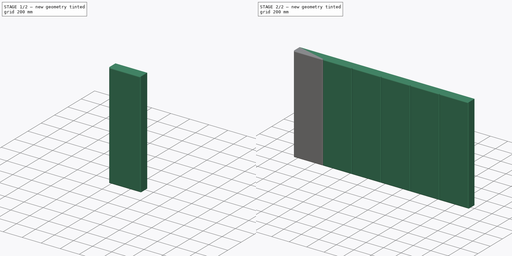
[diagram: build sequence overview — one tinted view per stage of 2, left to right]
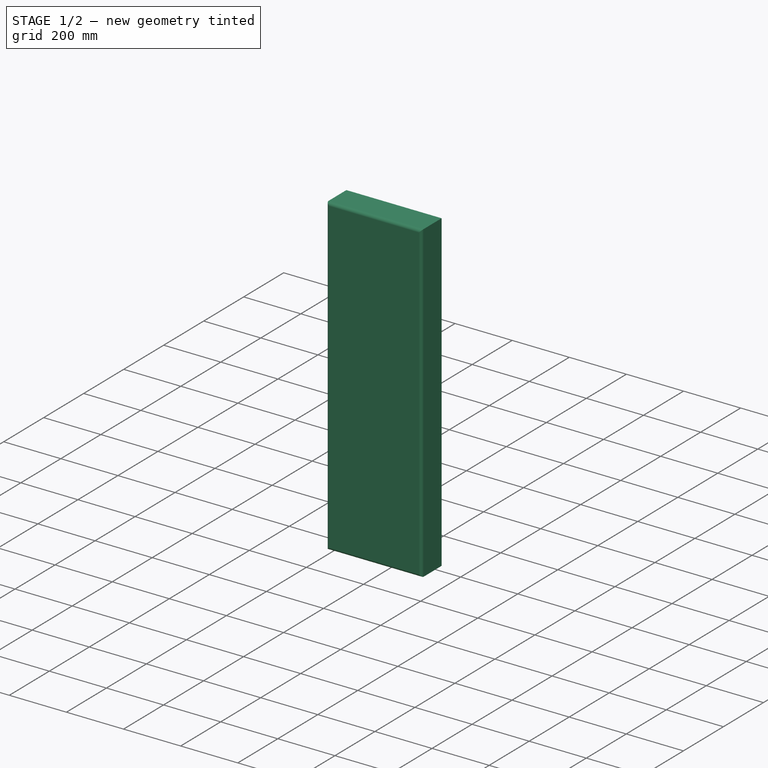
[diagram: stage 1 of 2 — iso view after this stage's code; geometry added in this stage tinted green]
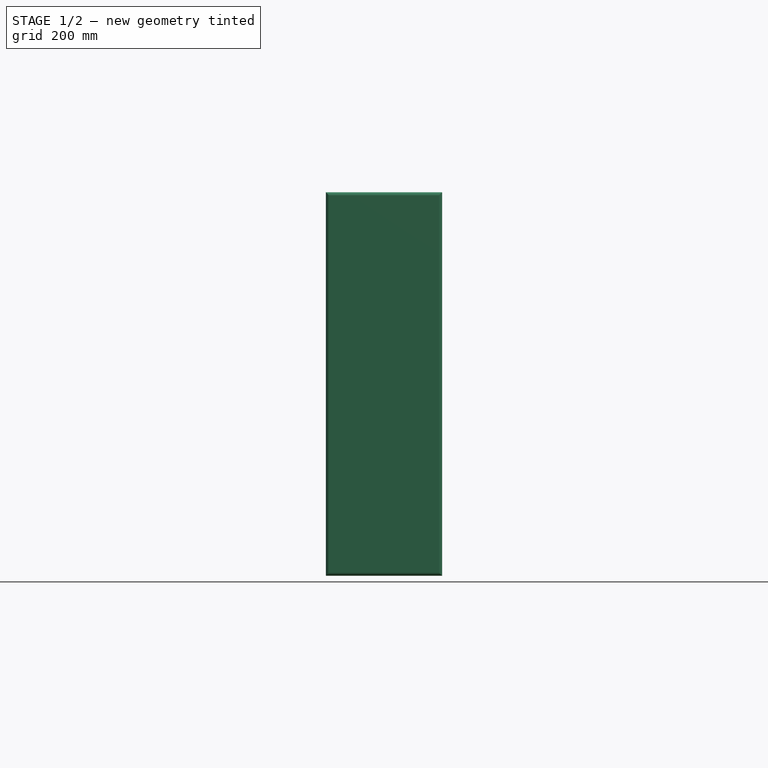
[diagram: stage 1 of 2 — front view after this stage's code; geometry added in this stage tinted green]
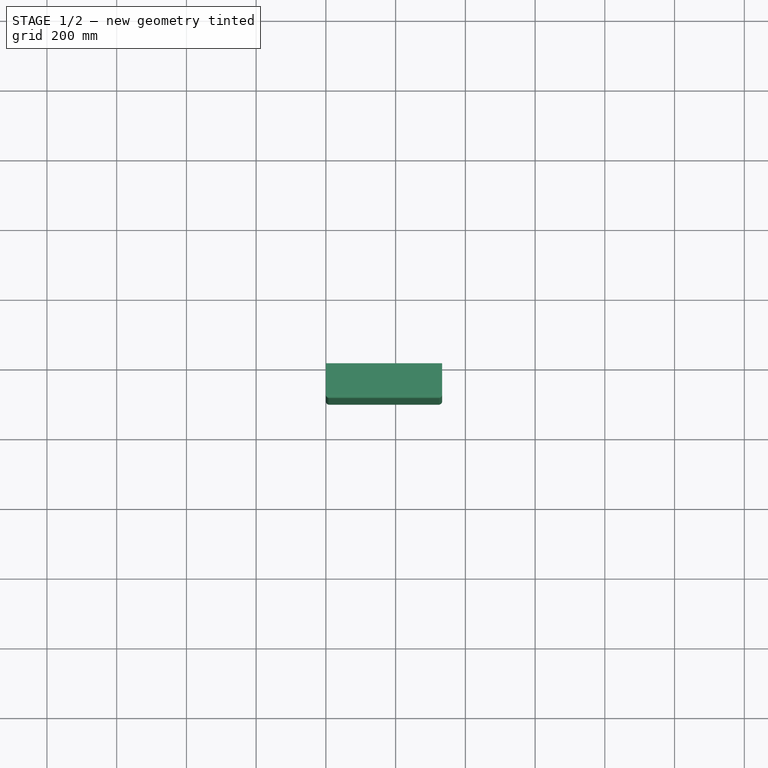
[diagram: stage 1 of 2 — top view after this stage's code; geometry added in this stage tinted green]
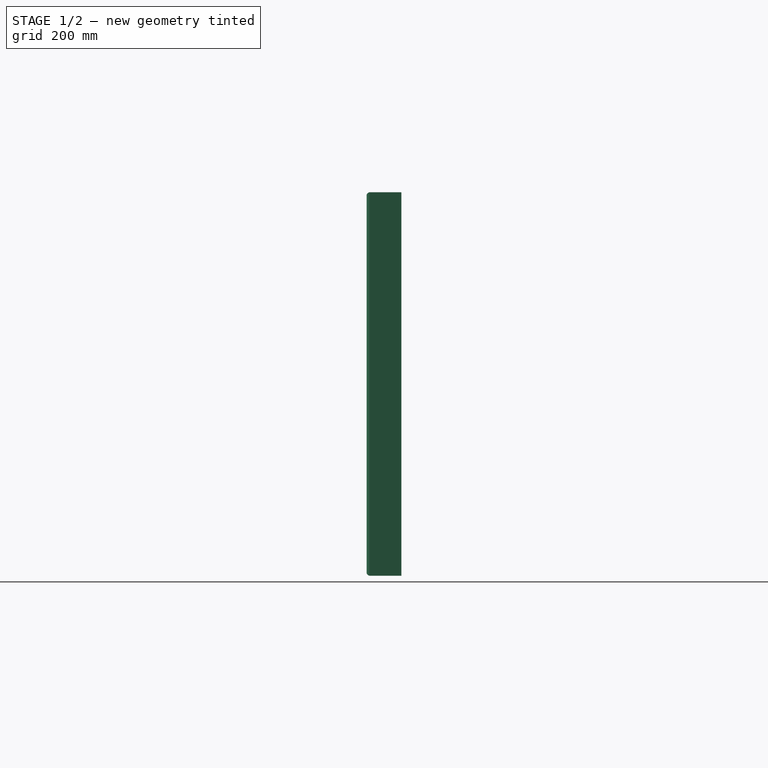
[diagram: stage 1 of 2 — right view after this stage's code; geometry added in this stage tinted green]
FCSTD DOCUMENT  (FreeCAD 0.21R33668 +26 (Git))
Label: Cabeceira
License: All rights reserved
objects: Part::FeaturePython×2, Sketcher::SketchObject×1, Part::Extrusion×1, Part::Fillet×1
note: 5 computed .brp shape members not serialized (recipe doc carries the construction recipe); baked Part::Feature solids carry a one-line shape summary decoded from their .brp

FEATURE [Sketcher::SketchObject] Sketch
  FullyConstrained = true
  Placement = pos=(0,0,0) rot=(1,0,0;1.5708rad)
  expr: Constraints[10] = <<Propriedades cabeceira>>.Altura
  expr: Constraints[9] = <<Propriedades cabeceira>>.Comprimento / <<Propriedades cabeceira>>.NumModulos
  sketch-geometry (4):
    g0: LineSegment StartX=0 StartY=0 StartZ=0 EndX=333.333 EndY=0 EndZ=0
    g1: LineSegment StartX=333.333 StartY=0 StartZ=0 EndX=333.333 EndY=1100 EndZ=0
    g2: LineSegment StartX=333.333 StartY=1100 StartZ=0 EndX=0 EndY=1100 EndZ=0
    g3: LineSegment StartX=0 StartY=1100 StartZ=0 EndX=0 EndY=0 EndZ=0
  constraints (11):
    c: Coincident(g0,g1)
    c: Coincident(g1,g2)
    c: Coincident(g2,g3)
    c: Coincident(g3,g0)
    c: Horizontal(g0)
    c: Horizontal(g2)
    c: Vertical(g1)
    c: Vertical(g3)
    c: Coincident(g0,g-1)
    c: DistanceX(g2,g2) = 333.333
    c: DistanceY(g1,g1) = 1100
FEATURE [Part::FeaturePython] Point  label="Propriedades cabeceira"  # WARN: FeaturePython — macro-defined, semantics opaque (R4)
  Altura = 1100
  Comprimento = 2000
  Largura = 100
  NumModulos = 6
  X = 0
  Y = 0
  Z = 0
FEATURE [Part::Extrusion] Extrude
  Base = -> Sketch
  Dir = (0,-1,2e-16)
  DirMode = 2
  FaceMakerClass = Part::FaceMakerBullseye
  LengthFwd = 100
  LengthRev = 0
  Solid = true
  Symmetric = false
  expr: LengthFwd = <<Propriedades cabeceira>>.Largura
FEATURE [Part::Fillet] Fillet
  Base = -> Extrude
  Edges = 4 edges r=10: [Edge4,Edge7,Edge10,Edge12]
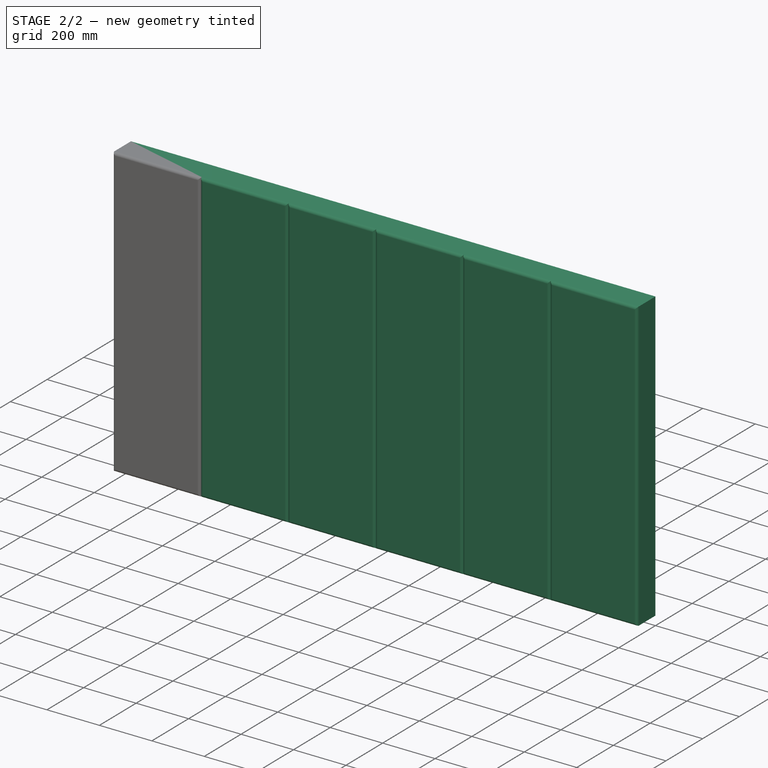
[diagram: stage 2 of 2 — iso view after this stage's code; geometry added in this stage tinted green]
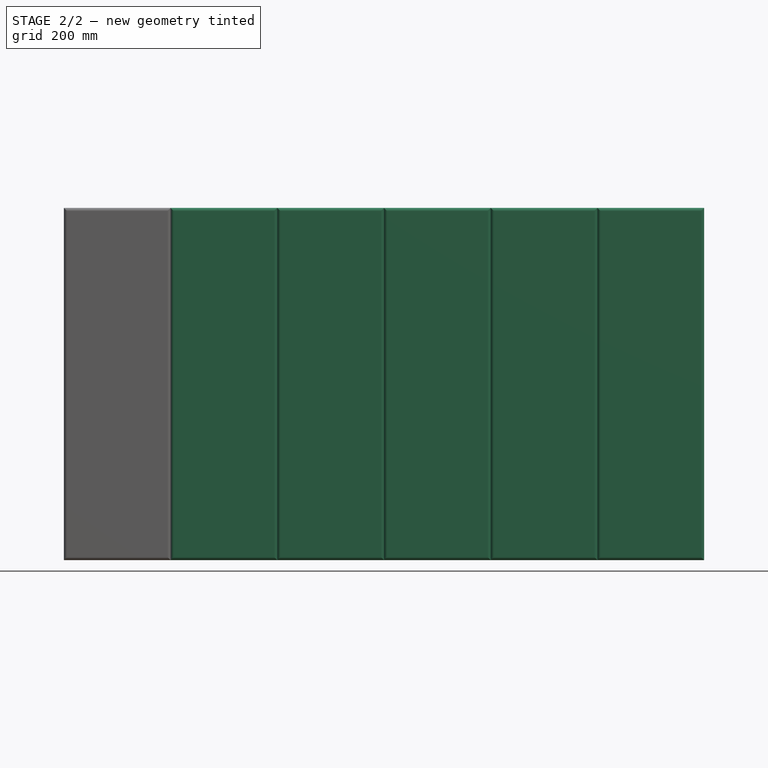
[diagram: stage 2 of 2 — front view after this stage's code; geometry added in this stage tinted green]
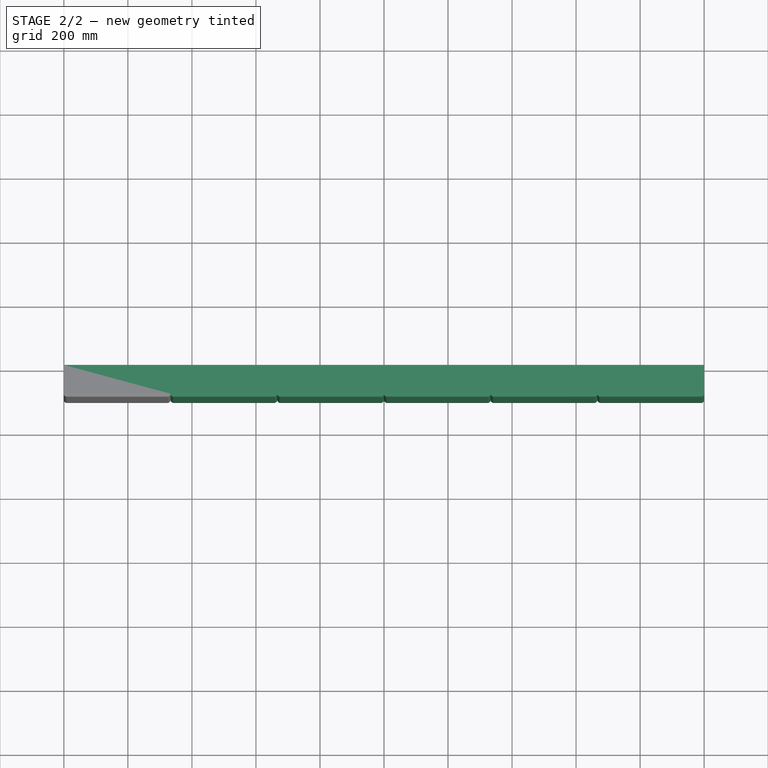
[diagram: stage 2 of 2 — top view after this stage's code; geometry added in this stage tinted green]
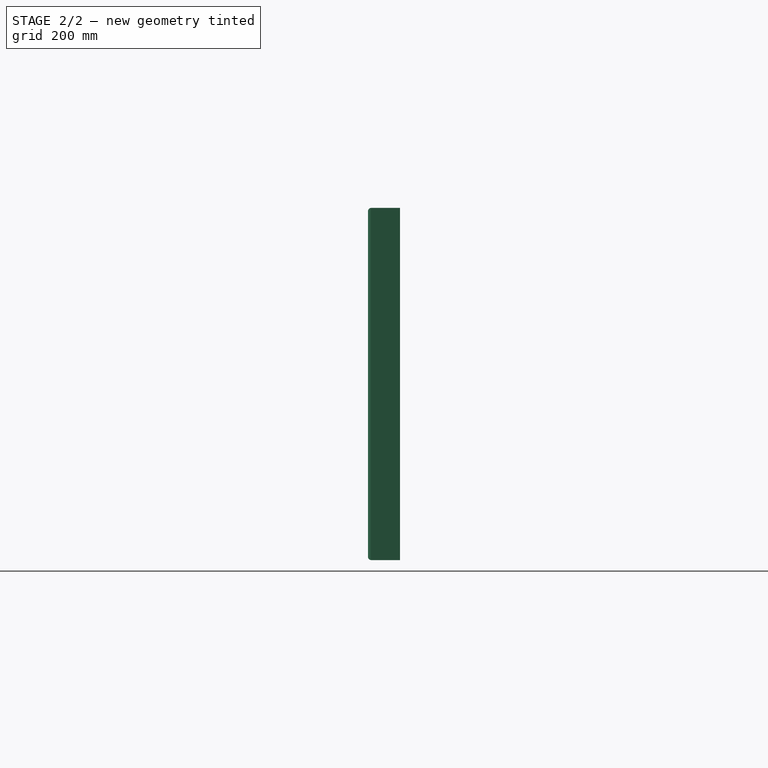
[diagram: stage 2 of 2 — right view after this stage's code; geometry added in this stage tinted green]
FEATURE [Part::FeaturePython] Array  label="cabeceira"  # Draft array (typed FeaturePython)
  Angle = 360
  ArrayType = 0
  Axis = (0,0,1)
  Base = -> Fillet
  Center = (0,0,0)
  Count = 6
  Fuse = true
  IntervalAxis = (0,0,0)
  IntervalX = (333.333,0,0)
  IntervalY = (0,100,0)
  IntervalZ = (0,0,100)
  NumberCircles = 3
  NumberPolar = 5
  NumberX = 6
  NumberY = 1
  NumberZ = 1
  RadialDistance = 50
  Symmetry = 1
  TangentialDistance = 25
  expr: .IntervalX.x = <<Propriedades cabeceira>>.Comprimento / <<Propriedades cabeceira>>.NumModulos
  expr: NumberX = <<Propriedades cabeceira>>.NumModulos
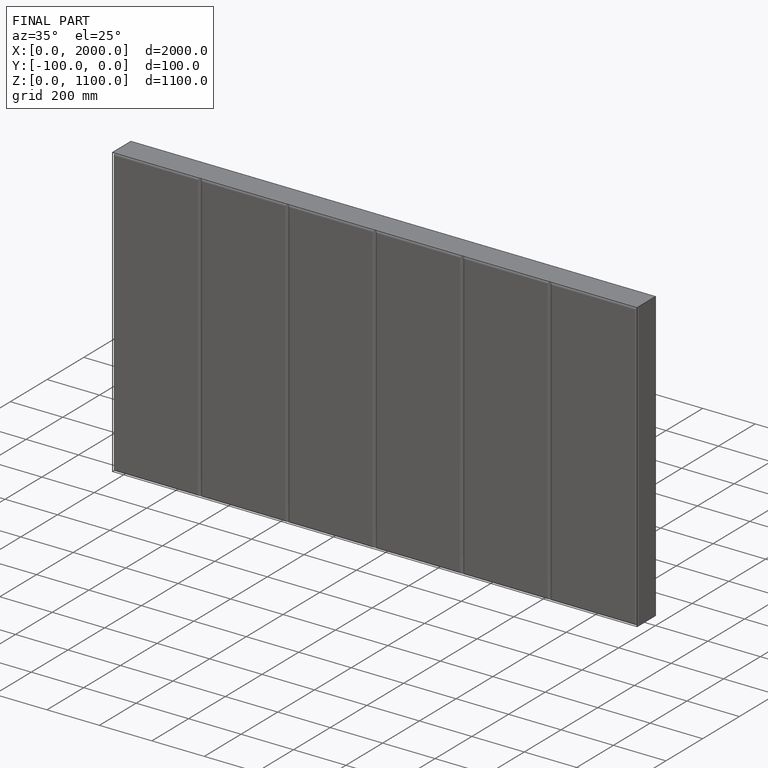
[diagram: finished part — iso view with bounding-box wireframe]
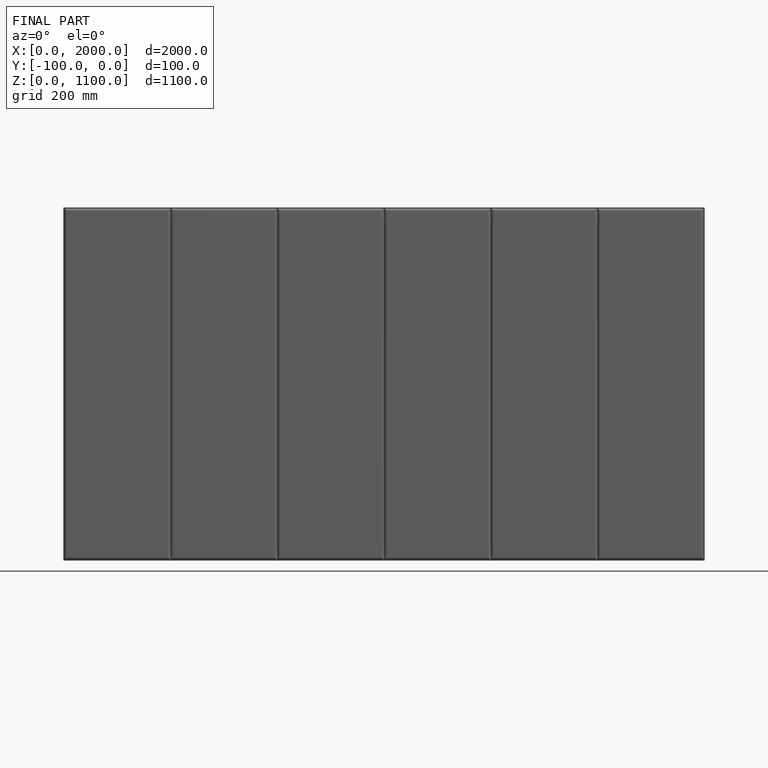
[diagram: finished part — front view with bounding-box wireframe]
